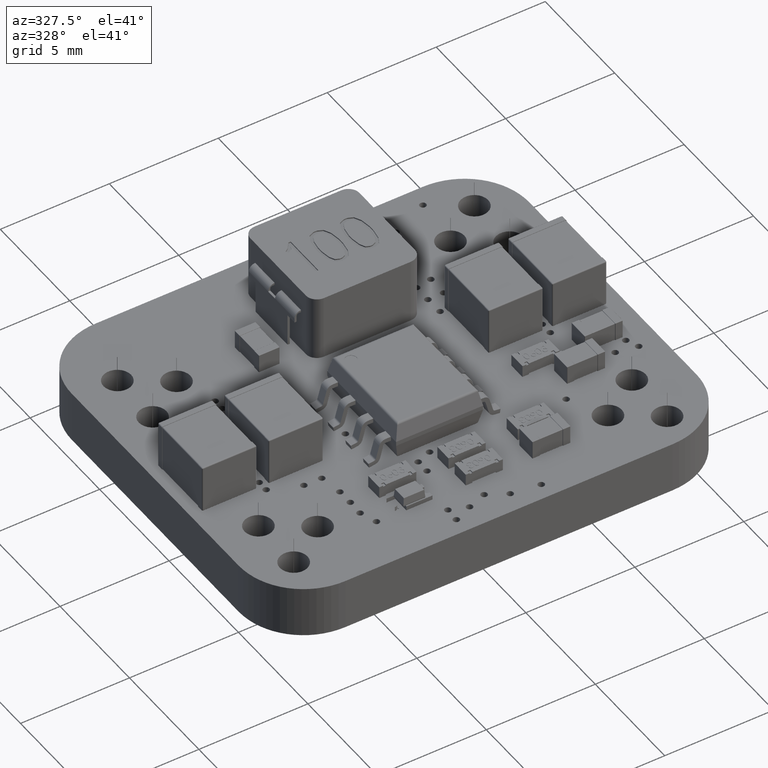
[diagram: clean part render]
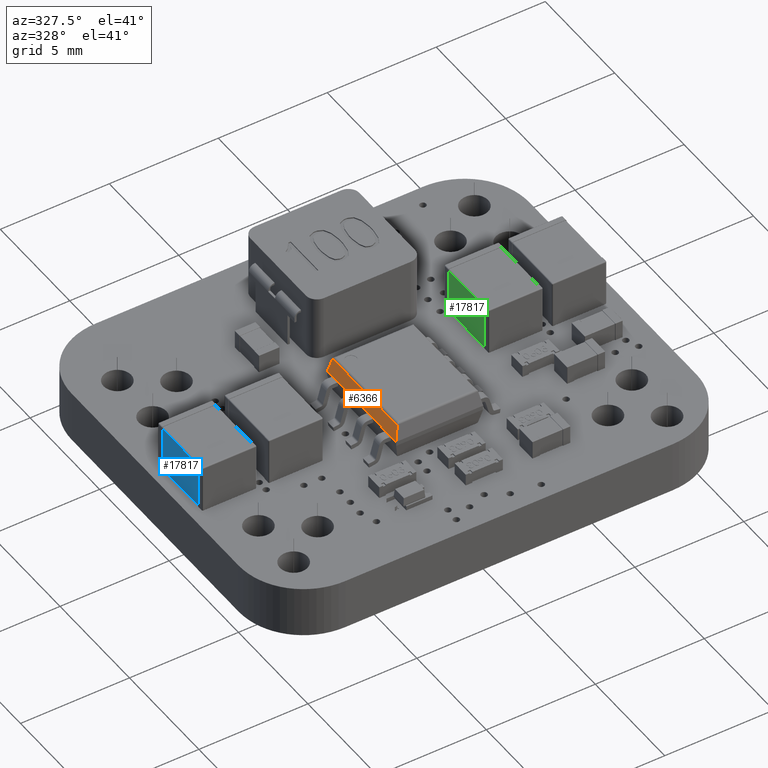
[diagram: same view with three faces highlighted in distinct colors, each labeled with its STEP entity id]
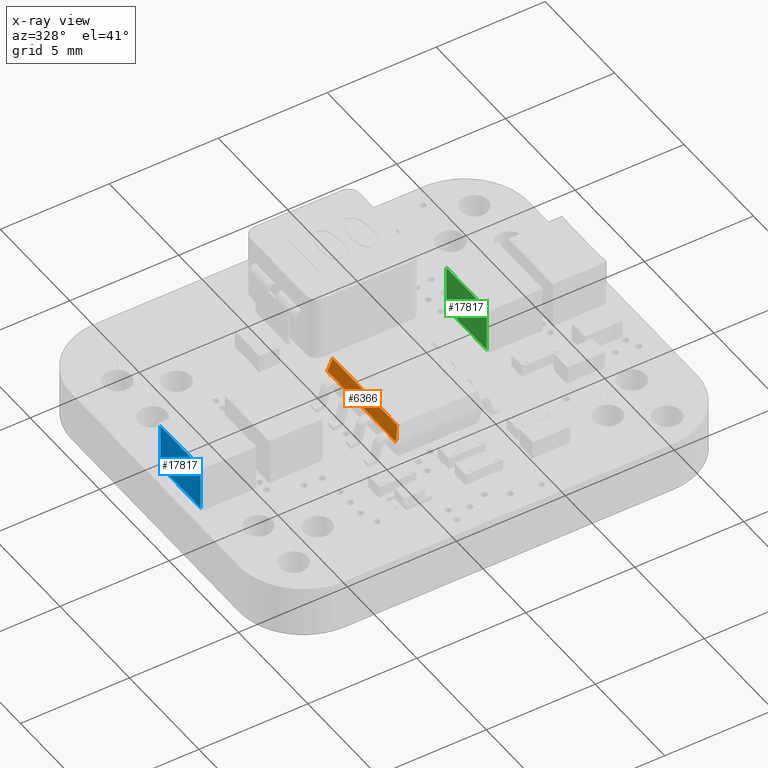
[diagram: x-ray of the same camera — body ghosted, the three highlighted faces saturated]
A machine part, auxiliary view with three faces highlighted in distinct colors.
The next image is the same camera in x-ray (body ghosted, the three faces saturated) — at least one of them is partly hidden behind the body in this view.
Their STEP definitions:

[orange] entity #6366 — the highlighted planar face has unit normal (0.9781, 0, -0.2079).
#5764 = VERTEX_POINT('',#5765);
#5765 = CARTESIAN_POINT('',(-2.,1.115,-2.105));
#5771 = EDGE_CURVE('',#5764,#5772,#5774,.T.);
#5772 = VERTEX_POINT('',#5773);
#5773 = CARTESIAN_POINT('',(-2.,1.115,-2.475));
#5774 = LINE('',#5775,#5776);
#5775 = CARTESIAN_POINT('',(-2.,1.115,2.475));
#5776 = VECTOR('',#5777,1.);
#5777 = DIRECTION('',(-2.628368902995E-16,0.,-1.));
#5801 = EDGE_CURVE('',#5802,#5804,#5806,.T.);
#5802 = VERTEX_POINT('',#5803);
#5803 = CARTESIAN_POINT('',(-2.,1.115,-0.835));
#5804 = VERTEX_POINT('',#5805);
#5805 = CARTESIAN_POINT('',(-2.,1.115,-1.705));
#5806 = LINE('',#5807,#5808);
#5807 = CARTESIAN_POINT('',(-2.,1.115,2.475));
#5808 = VECTOR('',#5809,1.);
#5809 = DIRECTION('',(-2.628368902995E-16,0.,-1.));
#5844 = VERTEX_POINT('',#5845);
#5845 = CARTESIAN_POINT('',(-2.,1.115,1.705));
#5851 = EDGE_CURVE('',#5844,#5852,#5854,.T.);
#5852 = VERTEX_POINT('',#5853);
#5853 = CARTESIAN_POINT('',(-2.,1.115,0.835));
#5854 = LINE('',#5855,#5856);
#5855 = CARTESIAN_POINT('',(-2.,1.115,2.475));
#5856 = VECTOR('',#5857,1.);
#5857 = DIRECTION('',(-2.628368902995E-16,0.,-1.));
#5881 = EDGE_CURVE('',#5882,#5884,#5886,.T.);
#5882 = VERTEX_POINT('',#5883);
#5883 = CARTESIAN_POINT('',(-2.,1.115,2.475));
#5884 = VERTEX_POINT('',#5885);
#5885 = CARTESIAN_POINT('',(-2.,1.115,2.105));
#5886 = LINE('',#5887,#5888);
#5887 = CARTESIAN_POINT('',(-2.,1.115,2.475));
#5888 = VECTOR('',#5889,1.);
#5889 = DIRECTION('',(-2.628368902995E-16,0.,-1.));
#5921 = EDGE_CURVE('',#5922,#5924,#5926,.T.);
#5922 = VERTEX_POINT('',#5923);
#5923 = CARTESIAN_POINT('',(-2.,1.115,0.435));
#5924 = VERTEX_POINT('',#5925);
#5925 = CARTESIAN_POINT('',(-2.,1.115,-0.435));
#5926 = LINE('',#5927,#5928);
#5927 = CARTESIAN_POINT('',(-2.,1.115,2.475));
#5928 = VECTOR('',#5929,1.);
#5929 = DIRECTION('',(-2.628368902995E-16,0.,-1.));
#6296 = VERTEX_POINT('',#6297);
#6297 = CARTESIAN_POINT('',(-1.854230587076,1.800791169082,
    2.329230587076));
#6303 = EDGE_CURVE('',#5882,#6296,#6304,.T.);
#6304 = LINE('',#6305,#6306);
#6305 = CARTESIAN_POINT('',(-1.639023276695,2.81326196128,2.114023276695
    ));
#6306 = VECTOR('',#6307,1.);
#6307 = DIRECTION('',(0.203558594953,0.957667894858,-0.203558594953));
#6366 = ADVANCED_FACE('',(#6367),#6413,.F.);
#6367 = FACE_BOUND('',#6368,.T.);
#6368 = EDGE_LOOP('',(#6369,#6370,#6378,#6384,#6385,#6391,#6392,#6398,
    #6399,#6405,#6406,#6412));
#6369 = ORIENTED_EDGE('',*,*,#6303,.T.);
#6370 = ORIENTED_EDGE('',*,*,#6371,.T.);
#6371 = EDGE_CURVE('',#6296,#6372,#6374,.T.);
#6372 = VERTEX_POINT('',#6373);
#6373 = CARTESIAN_POINT('',(-1.854230587076,1.800791169082,
    -2.329230587076));
#6374 = LINE('',#6375,#6376);
#6375 = CARTESIAN_POINT('',(-1.854230587076,1.800791169082,
    -2.312394230322));
#6376 = VECTOR('',#6377,1.);
#6377 = DIRECTION('',(-2.628368902995E-16,1.413442460148E-33,-1.));
#6378 = ORIENTED_EDGE('',*,*,#6379,.F.);
#6379 = EDGE_CURVE('',#5772,#6372,#6380,.T.);
#6380 = LINE('',#6381,#6382);
#6381 = CARTESIAN_POINT('',(-1.844131979512,1.848301382292,
    -2.319131979512));
#6382 = VECTOR('',#6383,1.);
#6383 = DIRECTION('',(0.203558594953,0.957667894858,0.203558594953));
#6384 = ORIENTED_EDGE('',*,*,#5771,.F.);
#6385 = ORIENTED_EDGE('',*,*,#6386,.T.);
#6386 = EDGE_CURVE('',#5764,#5804,#6387,.T.);
#6387 = LINE('',#6388,#6389);
#6388 = CARTESIAN_POINT('',(-2.,1.115,-2.105));
#6389 = VECTOR('',#6390,1.);
#6390 = DIRECTION('',(0.,0.,1.));
#6391 = ORIENTED_EDGE('',*,*,#5801,.F.);
#6392 = ORIENTED_EDGE('',*,*,#6393,.T.);
#6393 = EDGE_CURVE('',#5802,#5924,#6394,.T.);
#6394 = LINE('',#6395,#6396);
#6395 = CARTESIAN_POINT('',(-2.,1.115,-0.835));
#6396 = VECTOR('',#6397,1.);
#6397 = DIRECTION('',(0.,0.,1.));
#6398 = ORIENTED_EDGE('',*,*,#5921,.F.);
#6399 = ORIENTED_EDGE('',*,*,#6400,.T.);
#6400 = EDGE_CURVE('',#5922,#5852,#6401,.T.);
#6401 = LINE('',#6402,#6403);
#6402 = CARTESIAN_POINT('',(-2.,1.115,0.435));
#6403 = VECTOR('',#6404,1.);
#6404 = DIRECTION('',(0.,0.,1.));
#6405 = ORIENTED_EDGE('',*,*,#5851,.F.);
#6406 = ORIENTED_EDGE('',*,*,#6407,.T.);
#6407 = EDGE_CURVE('',#5844,#5884,#6408,.T.);
#6408 = LINE('',#6409,#6410);
#6409 = CARTESIAN_POINT('',(-2.,1.115,1.705));
#6410 = VECTOR('',#6411,1.);
#6411 = DIRECTION('',(0.,0.,1.));
#6412 = ORIENTED_EDGE('',*,*,#5881,.F.);
#6413 = PLANE('',#6414);
#6414 = AXIS2_PLACEMENT_3D('',#6415,#6416,#6417);
#6415 = CARTESIAN_POINT('',(-1.837394230322,1.88,-2.475));
#6416 = DIRECTION('',(0.978147600734,-0.207911690818,-2.570932736308E-16
    ));
#6417 = DIRECTION('',(0.207911690818,0.978147600734,1.232595164408E-32)
  );

[blue] entity #17817 — the highlighted planar face has unit normal (-1, 0, 0).
#17656 = VERTEX_POINT('',#17657);
#17657 = CARTESIAN_POINT('',(1.45,-1.235,2.135));
#17673 = VERTEX_POINT('',#17674);
#17674 = CARTESIAN_POINT('',(-1.45,-1.235,2.135));
#17681 = EDGE_CURVE('',#17656,#17673,#17682,.T.);
#17682 = LINE('',#17683,#17684);
#17683 = CARTESIAN_POINT('',(-1.45,-1.235,2.135));
#17684 = VECTOR('',#17685,1.);
#17685 = DIRECTION('',(-1.,0.,-1.495451272394E-16));
#17696 = VERTEX_POINT('',#17697);
#17697 = CARTESIAN_POINT('',(1.45,-1.235,6.5E-02));
#17706 = EDGE_CURVE('',#17696,#17707,#17709,.T.);
#17707 = VERTEX_POINT('',#17708);
#17708 = CARTESIAN_POINT('',(-1.45,-1.235,6.5E-02));
#17709 = LINE('',#17710,#17711);
#17710 = CARTESIAN_POINT('',(6.348365899508E-17,-1.235,6.5E-02));
#17711 = VECTOR('',#17712,1.);
#17712 = DIRECTION('',(-1.,0.,-6.133686859428E-17));
#17817 = ADVANCED_FACE('',(#17818),#17834,.T.);
#17818 = FACE_BOUND('',#17819,.T.);
#17819 = EDGE_LOOP('',(#17820,#17826,#17827,#17833));
#17820 = ORIENTED_EDGE('',*,*,#17821,.F.);
#17821 = EDGE_CURVE('',#17656,#17696,#17822,.T.);
#17822 = LINE('',#17823,#17824);
#17823 = CARTESIAN_POINT('',(1.45,-1.235,1.1));
#17824 = VECTOR('',#17825,1.);
#17825 = DIRECTION('',(0.,0.,-1.));
#17826 = ORIENTED_EDGE('',*,*,#17681,.T.);
#17827 = ORIENTED_EDGE('',*,*,#17828,.T.);
#17828 = EDGE_CURVE('',#17673,#17707,#17829,.T.);
#17829 = LINE('',#17830,#17831);
#17830 = CARTESIAN_POINT('',(-1.45,-1.235,1.1));
#17831 = VECTOR('',#17832,1.);
#17832 = DIRECTION('',(0.,0.,-1.));
#17833 = ORIENTED_EDGE('',*,*,#17706,.F.);
#17834 = PLANE('',#17835);
#17835 = AXIS2_PLACEMENT_3D('',#17836,#17837,#17838);
#17836 = CARTESIAN_POINT('',(0.,-1.235,1.1));
#17837 = DIRECTION('',(0.,-1.,0.));
#17838 = DIRECTION('',(1.,0.,0.));

[green] entity #17817 — the highlighted planar face has unit normal (-1, 0, 0).
#17656 = VERTEX_POINT('',#17657);
#17657 = CARTESIAN_POINT('',(1.45,-1.235,2.135));
#17673 = VERTEX_POINT('',#17674);
#17674 = CARTESIAN_POINT('',(-1.45,-1.235,2.135));
#17681 = EDGE_CURVE('',#17656,#17673,#17682,.T.);
#17682 = LINE('',#17683,#17684);
#17683 = CARTESIAN_POINT('',(-1.45,-1.235,2.135));
#17684 = VECTOR('',#17685,1.);
#17685 = DIRECTION('',(-1.,0.,-1.495451272394E-16));
#17696 = VERTEX_POINT('',#17697);
#17697 = CARTESIAN_POINT('',(1.45,-1.235,6.5E-02));
#17706 = EDGE_CURVE('',#17696,#17707,#17709,.T.);
#17707 = VERTEX_POINT('',#17708);
#17708 = CARTESIAN_POINT('',(-1.45,-1.235,6.5E-02));
#17709 = LINE('',#17710,#17711);
#17710 = CARTESIAN_POINT('',(6.348365899508E-17,-1.235,6.5E-02));
#17711 = VECTOR('',#17712,1.);
#17712 = DIRECTION('',(-1.,0.,-6.133686859428E-17));
#17817 = ADVANCED_FACE('',(#17818),#17834,.T.);
#17818 = FACE_BOUND('',#17819,.T.);
#17819 = EDGE_LOOP('',(#17820,#17826,#17827,#17833));
#17820 = ORIENTED_EDGE('',*,*,#17821,.F.);
#17821 = EDGE_CURVE('',#17656,#17696,#17822,.T.);
#17822 = LINE('',#17823,#17824);
#17823 = CARTESIAN_POINT('',(1.45,-1.235,1.1));
#17824 = VECTOR('',#17825,1.);
#17825 = DIRECTION('',(0.,0.,-1.));
#17826 = ORIENTED_EDGE('',*,*,#17681,.T.);
#17827 = ORIENTED_EDGE('',*,*,#17828,.T.);
#17828 = EDGE_CURVE('',#17673,#17707,#17829,.T.);
#17829 = LINE('',#17830,#17831);
#17830 = CARTESIAN_POINT('',(-1.45,-1.235,1.1));
#17831 = VECTOR('',#17832,1.);
#17832 = DIRECTION('',(0.,0.,-1.));
#17833 = ORIENTED_EDGE('',*,*,#17706,.F.);
#17834 = PLANE('',#17835);
#17835 = AXIS2_PLACEMENT_3D('',#17836,#17837,#17838);
#17836 = CARTESIAN_POINT('',(0.,-1.235,1.1));
#17837 = DIRECTION('',(0.,-1.,0.));
#17838 = DIRECTION('',(1.,0.,0.));